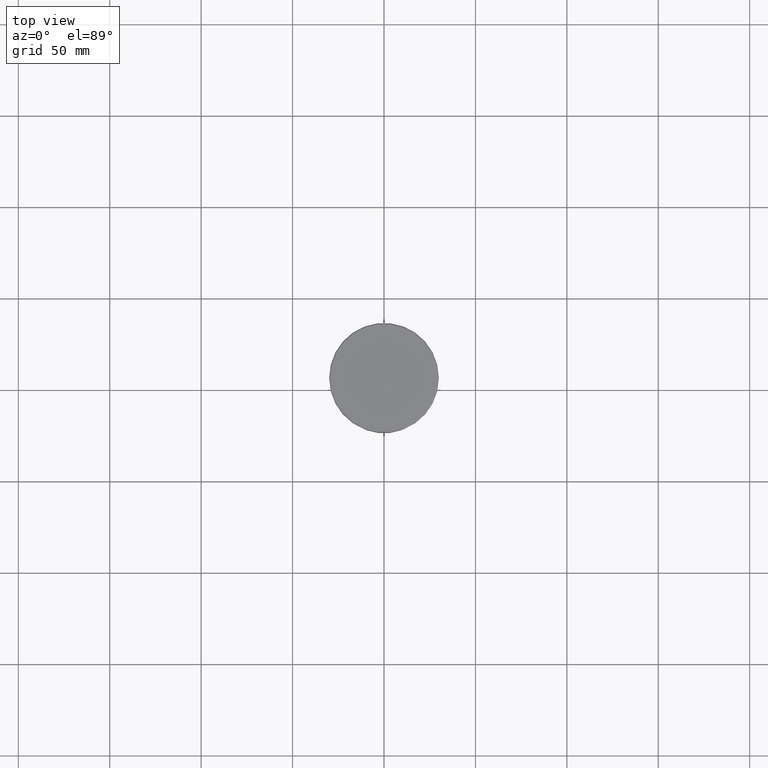
[diagram: clean part render]
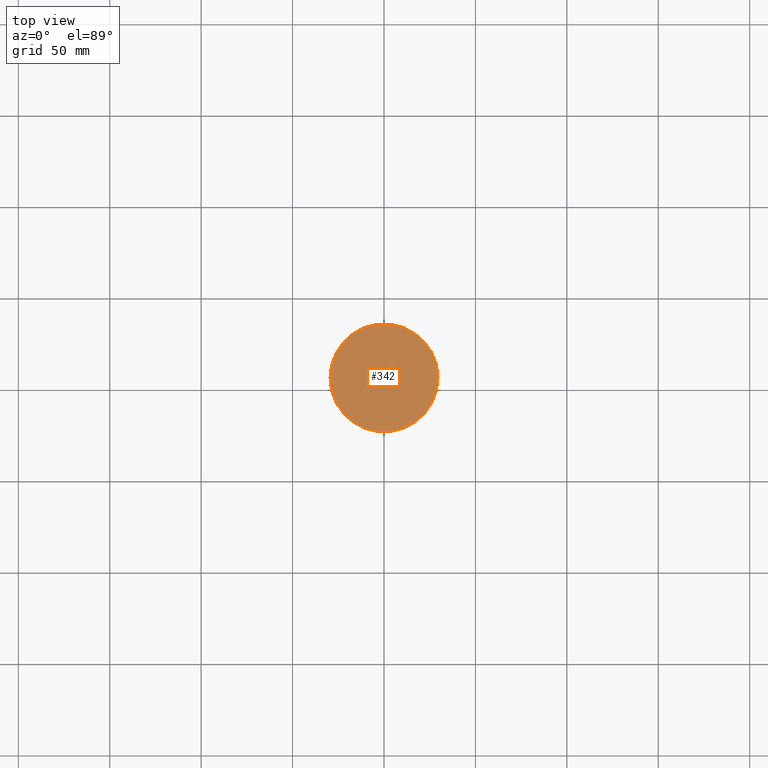
[diagram: same view with one face highlighted and labeled with its STEP entity id]
A machine part, top view. The second image highlights one B-rep face of the part: STEP entity #342.
In plain terms, the highlighted planar face has unit normal (0, -0, 1).
Its self-contained STEP definition (entity closure, byte-faithful):
#31 = DIRECTION ( 'NONE',  ( 1.000000000000000000, 0.000000000000000000, 0.000000000000000000 ) ) ;
#57 = DIRECTION ( 'NONE',  ( 1.000000000000000000, 0.000000000000000000, 0.000000000000000000 ) ) ;
#69 = DIRECTION ( 'NONE',  ( 1.000000000000000000, 0.000000000000000000, 0.000000000000000000 ) ) ;
#146 = DIRECTION ( 'NONE',  ( -0.000000000000000000, -0.000000000000000000, 1.000000000000000000 ) ) ;
#160 = VERTEX_POINT ( 'NONE', #394 ) ;
#193 = CARTESIAN_POINT ( 'NONE',  ( -29.50000000000002487, 0.000000000000000000, 0.000000000000000000 ) ) ;
#256 = EDGE_LOOP ( 'NONE', ( #671, #1138 ) ) ;
#322 = EDGE_CURVE ( 'NONE', #160, #837, #355, .T. ) ;
#327 = CARTESIAN_POINT ( 'NONE',  ( 0.000000000000000000, 0.000000000000000000, 0.000000000000000000 ) ) ;
#342 = ADVANCED_FACE ( 'NONE', ( #756 ), #1011, .T. ) ;
#355 = CIRCLE ( 'NONE', #1069, 29.50000000000002487 ) ;
#394 = CARTESIAN_POINT ( 'NONE',  ( 29.50000000000002487, 3.643324227463376968E-15, 0.000000000000000000 ) ) ;
#409 = DIRECTION ( 'NONE',  ( 0.000000000000000000, -0.000000000000000000, 1.000000000000000000 ) ) ;
#499 = CARTESIAN_POINT ( 'NONE',  ( 0.000000000000000000, 0.000000000000000000, 0.000000000000000000 ) ) ;
#519 = CARTESIAN_POINT ( 'NONE',  ( 0.000000000000000000, 0.000000000000000000, 0.000000000000000000 ) ) ;
#608 = DIRECTION ( 'NONE',  ( -0.000000000000000000, -0.000000000000000000, 1.000000000000000000 ) ) ;
#671 = ORIENTED_EDGE ( 'NONE', *, *, #675, .T. ) ;
#675 = EDGE_CURVE ( 'NONE', #837, #160, #1024, .T. ) ;
#756 = FACE_OUTER_BOUND ( 'NONE', #256, .T. ) ;
#837 = VERTEX_POINT ( 'NONE', #193 ) ;
#985 = AXIS2_PLACEMENT_3D ( 'NONE', #499, #409, #31 ) ;
#1011 = PLANE ( 'NONE',  #985 ) ;
#1024 = CIRCLE ( 'NONE', #1133, 29.50000000000002487 ) ;
#1069 = AXIS2_PLACEMENT_3D ( 'NONE', #327, #146, #57 ) ;
#1133 = AXIS2_PLACEMENT_3D ( 'NONE', #519, #608, #69 ) ;
#1138 = ORIENTED_EDGE ( 'NONE', *, *, #322, .T. ) ;